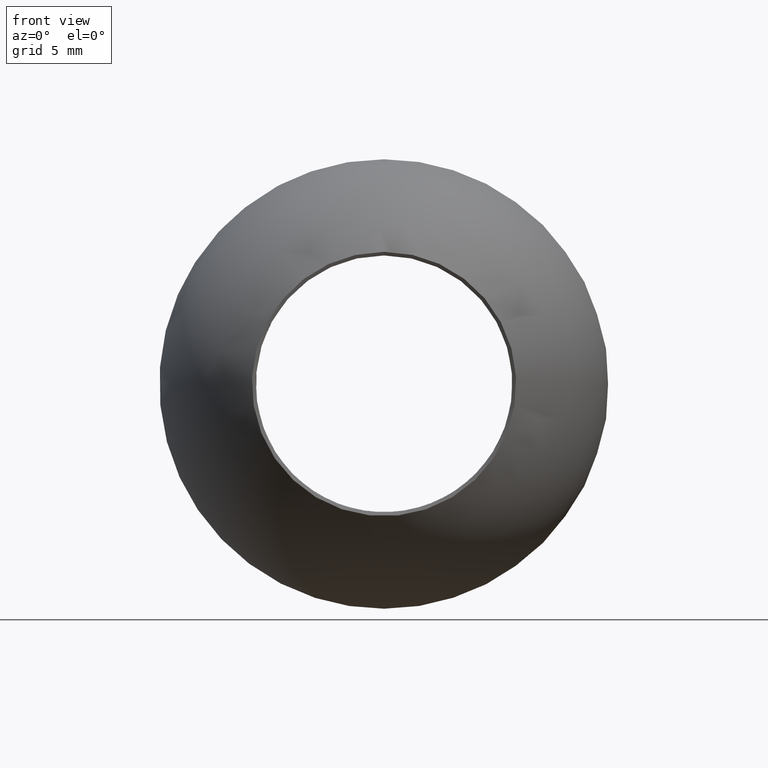
[diagram: clean part render]
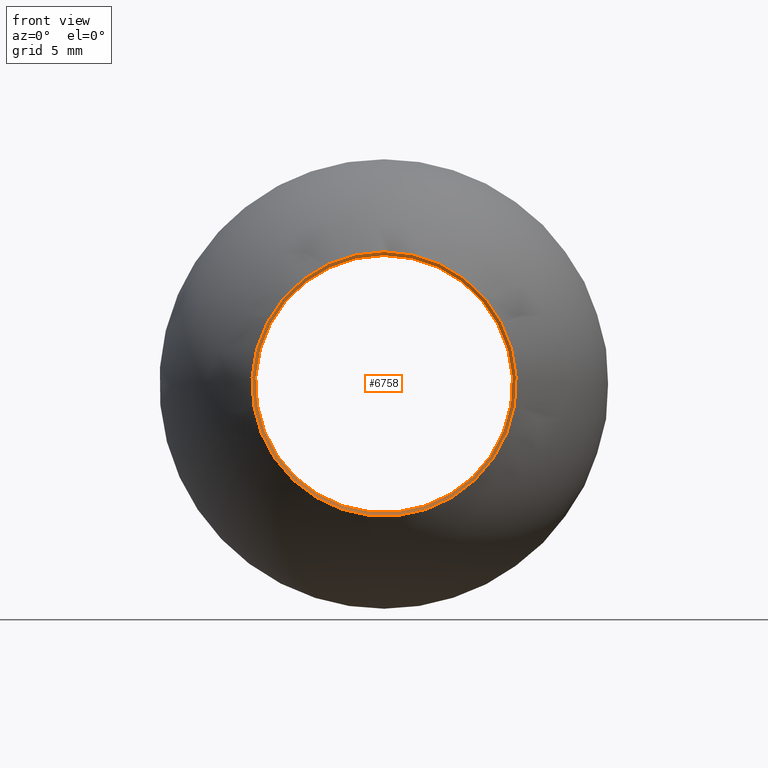
[diagram: same view with one face highlighted and labeled with its STEP entity id]
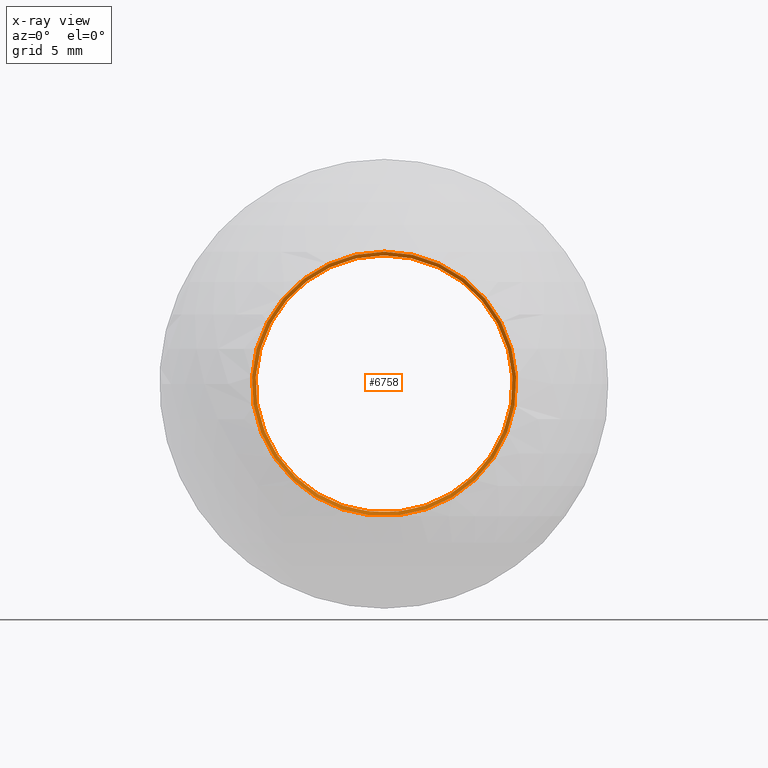
[diagram: x-ray of the same camera — body ghosted, the highlighted face saturated]
A machine part, front view. The second image highlights one B-rep face of the part: STEP entity #6758.
The next image is the same camera in x-ray: the body ghosted, the highlighted face saturated — about 0% of this face is hidden behind the body in this view.
In plain terms, the highlighted conical surface has half-angle 62.445 deg.
Its self-contained STEP definition (entity closure, byte-faithful):
#7 = FACE_OUTER_BOUND ( 'NONE', #813, .T. ) ;
#287 = CIRCLE ( 'NONE', #6072, 7.150000000000000400 ) ;
#364 = DIRECTION ( 'NONE',  ( 0.0000000000000000000, 0.0000000000000000000, 1.000000000000000000 ) ) ;
#373 = EDGE_LOOP ( 'NONE', ( #7862 ) ) ;
#813 = EDGE_LOOP ( 'NONE', ( #4042 ) ) ;
#1336 = CIRCLE ( 'NONE', #5523, 7.352588916478398900 ) ;
#1657 = CARTESIAN_POINT ( 'NONE',  ( 0.0000000000000000000, -10.10887907857636800, 0.0000000000000000000 ) ) ;
#2427 = DIRECTION ( 'NONE',  ( 0.0000000000000000000, 1.000000000000000000, 0.0000000000000000000 ) ) ;
#2832 = VERTEX_POINT ( 'NONE', #7195 ) ;
#2919 = CARTESIAN_POINT ( 'NONE',  ( 1.836970198721029600E-015, -10.10887907857636700, 0.0000000000000000000 ) ) ;
#2988 = DIRECTION ( 'NONE',  ( 0.0000000000000000000, 0.0000000000000000000, -1.000000000000000000 ) ) ;
#3045 = DIRECTION ( 'NONE',  ( 0.0000000000000000000, 0.0000000000000000000, 1.000000000000000000 ) ) ;
#3058 = DIRECTION ( 'NONE',  ( -0.0000000000000000000, -1.000000000000000000, -0.0000000000000000000 ) ) ;
#3407 = CARTESIAN_POINT ( 'NONE',  ( 1.836970198721029600E-015, -10.00317024144240100, 0.0000000000000000000 ) ) ;
#3510 = EDGE_CURVE ( 'NONE', #6096, #6096, #287, .T. ) ;
#3566 = AXIS2_PLACEMENT_3D ( 'NONE', #2919, #3058, #2988 ) ;
#4042 = ORIENTED_EDGE ( 'NONE', *, *, #6062, .F. ) ;
#4098 = FACE_BOUND ( 'NONE', #373, .T. ) ;
#4204 = DIRECTION ( 'NONE',  ( -0.0000000000000000000, -1.000000000000000000, -0.0000000000000000000 ) ) ;
#4770 = CARTESIAN_POINT ( 'NONE',  ( 1.836970198721029600E-015, -10.00317024144240100, 7.150000000000000400 ) ) ;
#5523 = AXIS2_PLACEMENT_3D ( 'NONE', #1657, #2427, #3045 ) ;
#6062 = EDGE_CURVE ( 'NONE', #2832, #2832, #1336, .T. ) ;
#6072 = AXIS2_PLACEMENT_3D ( 'NONE', #3407, #4204, #364 ) ;
#6096 = VERTEX_POINT ( 'NONE', #4770 ) ;
#6758 = ADVANCED_FACE ( 'NONE', ( #4098, #7 ), #7958, .F. ) ;
#7195 = CARTESIAN_POINT ( 'NONE',  ( 0.0000000000000000000, -10.10887907857636800, 7.352588916478398900 ) ) ;
#7862 = ORIENTED_EDGE ( 'NONE', *, *, #3510, .F. ) ;
#7958 = CONICAL_SURFACE ( 'NONE', #3566, 7.352588916478398000, 1.089869192634851200 ) ;